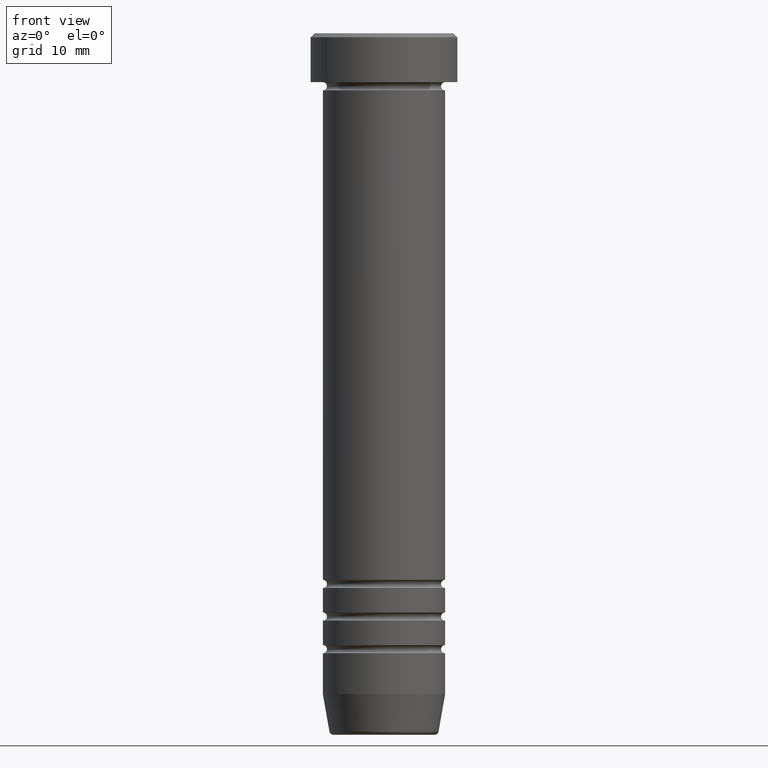
[diagram: clean part render]
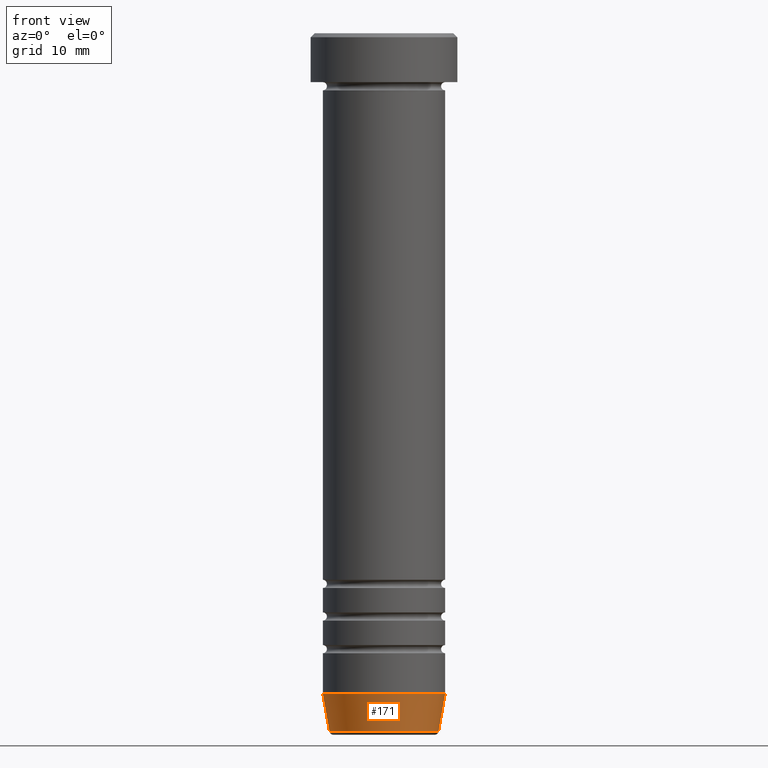
[diagram: same view with one face highlighted and labeled with its STEP entity id]
A machine part, front view. The second image highlights one B-rep face of the part: STEP entity #171.
In plain terms, the highlighted conical surface has half-angle 10 deg.
Its self-contained STEP definition (entity closure, byte-faithful):
#31 = CONICAL_SURFACE ( 'NONE', #1122, 6.618365096457669239, 0.1745329251994335584 ) ;
#120 = CARTESIAN_POINT ( 'NONE',  ( 7.499999999999998224, 0.000000000000000000, -80.99999999999998579 ) ) ;
#125 = LINE ( 'NONE', #397, #201 ) ;
#144 = ORIENTED_EDGE ( 'NONE', *, *, #309, .F. ) ;
#158 = VERTEX_POINT ( 'NONE', #120 ) ;
#171 = ADVANCED_FACE ( 'NONE', ( #719 ), #31, .T. ) ;
#201 = VECTOR ( 'NONE', #483, 1000.000000000000114 ) ;
#264 = CARTESIAN_POINT ( 'NONE',  ( 6.618365096457669239, 0.000000000000000000, -86.00000000000000000 ) ) ;
#275 = AXIS2_PLACEMENT_3D ( 'NONE', #583, #323, #565 ) ;
#309 = EDGE_CURVE ( 'NONE', #1020, #725, #125, .T. ) ;
#323 = DIRECTION ( 'NONE',  ( -0.000000000000000000, -0.000000000000000000, 1.000000000000000000 ) ) ;
#331 = EDGE_LOOP ( 'NONE', ( #144, #814, #952, #567 ) ) ;
#335 = CIRCLE ( 'NONE', #275, 6.691219157375132731 ) ;
#370 = CARTESIAN_POINT ( 'NONE',  ( -6.691219157375132731, 8.689615558539026244E-16, -85.58682408883345261 ) ) ;
#397 = CARTESIAN_POINT ( 'NONE',  ( -6.618365096457669239, 8.105159630965448420E-16, -86.00000000000000000 ) ) ;
#476 = DIRECTION ( 'NONE',  ( -0.000000000000000000, -0.000000000000000000, 1.000000000000000000 ) ) ;
#482 = EDGE_CURVE ( 'NONE', #649, #158, #787, .T. ) ;
#483 = DIRECTION ( 'NONE',  ( -0.1736481776669309418, 2.126576849575779002E-17, 0.9848077530122080203 ) ) ;
#518 = CIRCLE ( 'NONE', #828, 7.499999999999998224 ) ;
#565 = DIRECTION ( 'NONE',  ( -1.000000000000000000, 0.000000000000000000, 0.000000000000000000 ) ) ;
#567 = ORIENTED_EDGE ( 'NONE', *, *, #658, .F. ) ;
#583 = CARTESIAN_POINT ( 'NONE',  ( 0.000000000000000000, 0.000000000000000000, -85.58682408883345261 ) ) ;
#619 = CARTESIAN_POINT ( 'NONE',  ( -7.499999999999998224, 9.184850993605145972E-16, -80.99999999999998579 ) ) ;
#643 = VECTOR ( 'NONE', #701, 1000.000000000000114 ) ;
#649 = VERTEX_POINT ( 'NONE', #898 ) ;
#658 = EDGE_CURVE ( 'NONE', #725, #158, #518, .T. ) ;
#701 = DIRECTION ( 'NONE',  ( 0.1736481776669309418, 0.000000000000000000, 0.9848077530122080203 ) ) ;
#708 = CARTESIAN_POINT ( 'NONE',  ( 0.000000000000000000, 0.000000000000000000, -80.99999999999998579 ) ) ;
#719 = FACE_OUTER_BOUND ( 'NONE', #331, .T. ) ;
#725 = VERTEX_POINT ( 'NONE', #619 ) ;
#728 = CARTESIAN_POINT ( 'NONE',  ( 0.000000000000000000, 0.000000000000000000, -86.00000000000000000 ) ) ;
#787 = LINE ( 'NONE', #264, #643 ) ;
#814 = ORIENTED_EDGE ( 'NONE', *, *, #847, .T. ) ;
#828 = AXIS2_PLACEMENT_3D ( 'NONE', #708, #1063, #1075 ) ;
#847 = EDGE_CURVE ( 'NONE', #1020, #649, #335, .T. ) ;
#890 = DIRECTION ( 'NONE',  ( 1.000000000000000000, 0.000000000000000000, 0.000000000000000000 ) ) ;
#898 = CARTESIAN_POINT ( 'NONE',  ( 6.691219157375132731, 0.000000000000000000, -85.58682408883345261 ) ) ;
#952 = ORIENTED_EDGE ( 'NONE', *, *, #482, .T. ) ;
#1020 = VERTEX_POINT ( 'NONE', #370 ) ;
#1063 = DIRECTION ( 'NONE',  ( -0.000000000000000000, -0.000000000000000000, 1.000000000000000000 ) ) ;
#1075 = DIRECTION ( 'NONE',  ( 1.000000000000000000, 0.000000000000000000, 0.000000000000000000 ) ) ;
#1122 = AXIS2_PLACEMENT_3D ( 'NONE', #728, #476, #890 ) ;